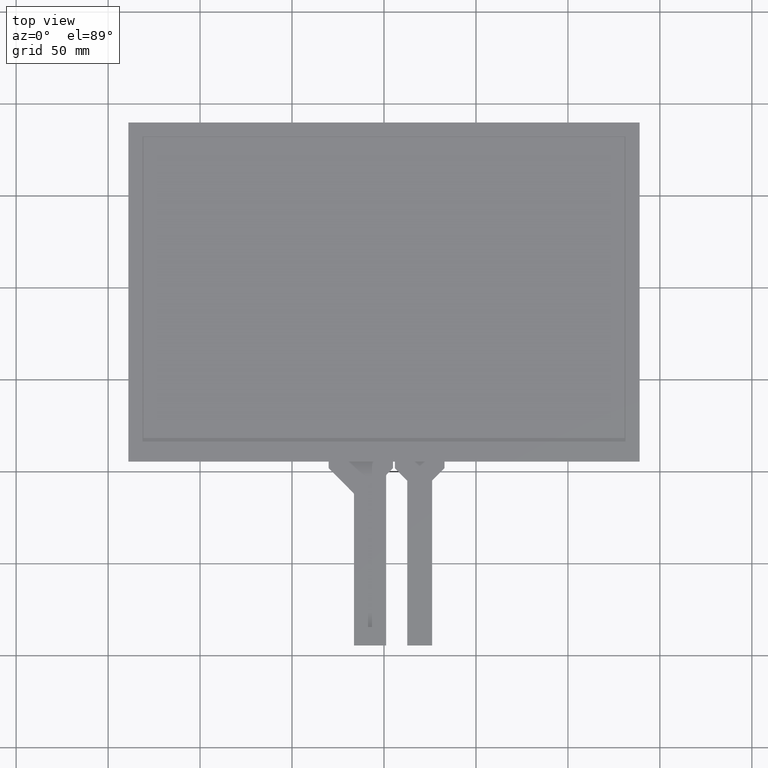
[diagram: clean part render]
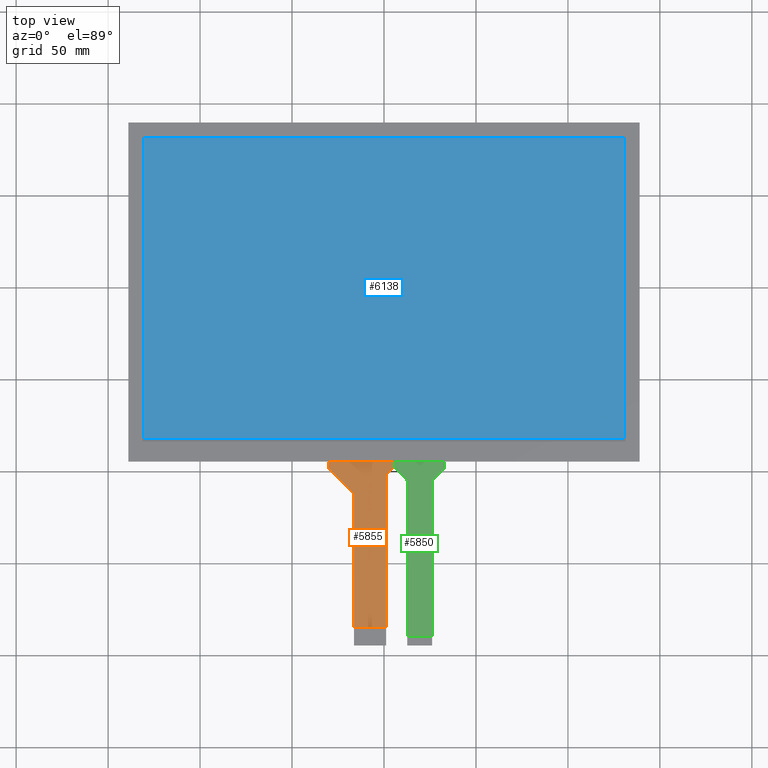
[diagram: same view with three faces highlighted in distinct colors, each labeled with its STEP entity id]
A machine part, top view with three faces highlighted in distinct colors.
Their STEP definitions:

[orange] entity #5855 — the highlighted planar face has unit normal (0, 0, 1).
#93=PLANE('',#6179);
#379=FACE_OUTER_BOUND('',#673,.T.);
#673=EDGE_LOOP('',(#4158,#4159,#4160,#4161,#4162,#4163,#4164,#4165,#4166,
#4167,#4168,#4169));
#983=LINE('',#8019,#1823);
#993=LINE('',#8042,#1833);
#994=LINE('',#8045,#1834);
#995=LINE('',#8047,#1835);
#996=LINE('',#8049,#1836);
#997=LINE('',#8053,#1837);
#998=LINE('',#8057,#1838);
#999=LINE('',#8058,#1839);
#1823=VECTOR('',#6531,10.);
#1833=VECTOR('',#6549,10.);
#1834=VECTOR('',#6552,10.);
#1835=VECTOR('',#6553,10.);
#1836=VECTOR('',#6554,10.);
#1837=VECTOR('',#6557,10.);
#1838=VECTOR('',#6560,10.);
#1839=VECTOR('',#6561,10.);
#2648=CIRCLE('',#6172,1.);
#2651=CIRCLE('',#6177,1.);
#2652=CIRCLE('',#6180,1.);
#2653=CIRCLE('',#6181,1.);
#2687=VERTEX_POINT('',#8009);
#2688=VERTEX_POINT('',#8010);
#2691=VERTEX_POINT('',#8018);
#2699=VERTEX_POINT('',#8035);
#2700=VERTEX_POINT('',#8037);
#2701=VERTEX_POINT('',#8044);
#2702=VERTEX_POINT('',#8046);
#2703=VERTEX_POINT('',#8048);
#2704=VERTEX_POINT('',#8050);
#2705=VERTEX_POINT('',#8052);
#2706=VERTEX_POINT('',#8054);
#2707=VERTEX_POINT('',#8056);
#3267=EDGE_CURVE('',#2687,#2688,#2648,.T.);
#3271=EDGE_CURVE('',#2691,#2688,#983,.T.);
#3280=EDGE_CURVE('',#2699,#2700,#2651,.T.);
#3283=EDGE_CURVE('',#2687,#2700,#993,.T.);
#3284=EDGE_CURVE('',#2699,#2701,#994,.T.);
#3285=EDGE_CURVE('',#2702,#2701,#995,.T.);
#3286=EDGE_CURVE('',#2702,#2703,#996,.T.);
#3287=EDGE_CURVE('',#2704,#2703,#2652,.T.);
#3288=EDGE_CURVE('',#2704,#2705,#997,.T.);
#3289=EDGE_CURVE('',#2706,#2705,#2653,.T.);
#3290=EDGE_CURVE('',#2706,#2707,#998,.T.);
#3291=EDGE_CURVE('',#2707,#2691,#999,.T.);
#4158=ORIENTED_EDGE('',*,*,#3280,.F.);
#4159=ORIENTED_EDGE('',*,*,#3284,.T.);
#4160=ORIENTED_EDGE('',*,*,#3285,.F.);
#4161=ORIENTED_EDGE('',*,*,#3286,.T.);
#4162=ORIENTED_EDGE('',*,*,#3287,.F.);
#4163=ORIENTED_EDGE('',*,*,#3288,.T.);
#4164=ORIENTED_EDGE('',*,*,#3289,.F.);
#4165=ORIENTED_EDGE('',*,*,#3290,.T.);
#4166=ORIENTED_EDGE('',*,*,#3291,.T.);
#4167=ORIENTED_EDGE('',*,*,#3271,.T.);
#4168=ORIENTED_EDGE('',*,*,#3267,.F.);
#4169=ORIENTED_EDGE('',*,*,#3283,.T.);
#5855=ADVANCED_FACE('',(#379),#93,.T.);
#6172=AXIS2_PLACEMENT_3D('',#8011,#6523,#6524);
#6177=AXIS2_PLACEMENT_3D('',#8038,#6543,#6544);
#6179=AXIS2_PLACEMENT_3D('',#8043,#6550,#6551);
#6180=AXIS2_PLACEMENT_3D('',#8051,#6555,#6556);
#6181=AXIS2_PLACEMENT_3D('',#8055,#6558,#6559);
#6523=DIRECTION('center_axis',(0.,0.,1.));
#6524=DIRECTION('ref_axis',(-0.923531889914345,0.383521639951696,0.));
#6531=DIRECTION('',(-4.79248887762602E-16,1.,0.));
#6543=DIRECTION('center_axis',(0.,0.,-1.));
#6544=DIRECTION('ref_axis',(0.923531889914352,-0.383521639951679,0.));
#6549=DIRECTION('',(0.708388929935268,0.705822303377533,0.));
#6550=DIRECTION('center_axis',(0.,0.,1.));
#6551=DIRECTION('ref_axis',(1.,0.,0.));
#6552=DIRECTION('',(-3.083952846181E-16,1.,0.));
#6553=DIRECTION('',(1.,1.27832242328746E-16,0.));
#6554=DIRECTION('',(-1.2335811384724E-15,-1.,0.));
#6555=DIRECTION('center_axis',(0.,0.,-1.));
#6556=DIRECTION('ref_axis',(-0.924226414342084,-0.381844909658848,0.));
#6557=DIRECTION('',(0.705822303377533,-0.708388929935268,0.));
#6558=DIRECTION('center_axis',(0.,0.,1.));
#6559=DIRECTION('ref_axis',(0.924226414342084,0.38184490965885,0.));
#6560=DIRECTION('',(1.07527653716722E-16,-1.,0.));
#6561=DIRECTION('',(1.,-2.03012210217171E-15,0.));
#8009=CARTESIAN_POINT('',(1.45417769662247,-101.593301208075,-0.2));
#8010=CARTESIAN_POINT('',(1.16000000000001,-102.301690138011,-0.2));
#8011=CARTESIAN_POINT('Origin',(2.16000000000001,-102.301690138011,-0.2));
#8018=CARTESIAN_POINT('',(1.16000000000005,-184.55,-0.2));
#8019=CARTESIAN_POINT('',(1.16000000000005,-194.55,-0.2));
#8035=CARTESIAN_POINT('',(4.91,-97.7347229054675,-0.2));
#8037=CARTESIAN_POINT('',(4.61582230337754,-98.4431118354028,-0.2));
#8038=CARTESIAN_POINT('Origin',(3.91,-97.7347229054675,-0.2));
#8042=CARTESIAN_POINT('',(1.16000000000001,-101.886413043478,-0.2));
#8043=CARTESIAN_POINT('Origin',(-12.59,-144.55,-0.2));
#8044=CARTESIAN_POINT('',(4.91,-94.55,-0.2));
#8045=CARTESIAN_POINT('',(4.91,-98.15,-0.2));
#8046=CARTESIAN_POINT('',(-30.09,-94.55,-0.2));
#8047=CARTESIAN_POINT('',(63.185,-94.55,-0.2));
#8048=CARTESIAN_POINT('',(-30.09,-97.7368491705783,-0.2));
#8049=CARTESIAN_POINT('',(-30.09,-94.55,-0.2));
#8050=CARTESIAN_POINT('',(-29.7983889299353,-98.4426714739558,-0.2));
#8051=CARTESIAN_POINT('Origin',(-29.09,-97.7368491705783,-0.2));
#8052=CARTESIAN_POINT('',(-16.6316110700647,-111.657328526044,-0.2));
#8053=CARTESIAN_POINT('',(-30.09,-98.15,-0.2));
#8054=CARTESIAN_POINT('',(-16.34,-112.363150829422,-0.2));
#8055=CARTESIAN_POINT('Origin',(-17.34,-112.363150829422,-0.2));
#8056=CARTESIAN_POINT('',(-16.34,-184.55,-0.2));
#8057=CARTESIAN_POINT('',(-16.34,-111.95,-0.2));
#8058=CARTESIAN_POINT('',(-5.71500000000002,-184.55,-0.2));

[blue] entity #6138 — the highlighted planar face has unit normal (0, 0, 1).
#368=PLANE('',#6476);
#662=FACE_OUTER_BOUND('',#960,.T.);
#960=EDGE_LOOP('',(#5826,#5827,#5828,#5829));
#1766=LINE('',#9618,#2606);
#1770=LINE('',#9626,#2610);
#1773=LINE('',#9632,#2613);
#1776=LINE('',#9637,#2616);
#2606=VECTOR('',#7890,10.);
#2610=VECTOR('',#7896,10.);
#2613=VECTOR('',#7901,10.);
#2616=VECTOR('',#7906,10.);
#3218=VERTEX_POINT('',#9616);
#3219=VERTEX_POINT('',#9617);
#3222=VERTEX_POINT('',#9625);
#3224=VERTEX_POINT('',#9631);
#4070=EDGE_CURVE('',#3218,#3219,#1766,.T.);
#4074=EDGE_CURVE('',#3222,#3218,#1770,.T.);
#4077=EDGE_CURVE('',#3224,#3222,#1773,.T.);
#4080=EDGE_CURVE('',#3219,#3224,#1776,.T.);
#5826=ORIENTED_EDGE('',*,*,#4070,.T.);
#5827=ORIENTED_EDGE('',*,*,#4080,.T.);
#5828=ORIENTED_EDGE('',*,*,#4077,.T.);
#5829=ORIENTED_EDGE('',*,*,#4074,.T.);
#6138=ADVANCED_FACE('',(#662),#368,.T.);
#6476=AXIS2_PLACEMENT_3D('',#9689,#7952,#7953);
#7890=DIRECTION('',(1.,0.,0.));
#7896=DIRECTION('',(0.,-1.,0.));
#7901=DIRECTION('',(-1.,0.,0.));
#7906=DIRECTION('',(0.,1.,0.));
#7952=DIRECTION('center_axis',(0.,0.,1.));
#7953=DIRECTION('ref_axis',(1.,0.,0.));
#9616=CARTESIAN_POINT('',(-130.81,-81.85,0.));
#9617=CARTESIAN_POINT('',(130.81,-81.85,0.));
#9618=CARTESIAN_POINT('',(-65.405,-81.85,0.));
#9625=CARTESIAN_POINT('',(-130.81,81.85,0.));
#9626=CARTESIAN_POINT('',(-130.81,39.75,0.));
#9631=CARTESIAN_POINT('',(130.81,81.85,0.));
#9632=CARTESIAN_POINT('',(65.405,81.85,0.));
#9637=CARTESIAN_POINT('',(130.81,-42.1,0.));
#9689=CARTESIAN_POINT('Origin',(0.,-2.34999999999998,0.));

[green] entity #5850 — the highlighted planar face has unit normal (0, 0, 1).
#90=PLANE('',#6168);
#374=FACE_OUTER_BOUND('',#668,.T.);
#668=EDGE_LOOP('',(#4126,#4127,#4128,#4129,#4130,#4131,#4132,#4133,#4134,
#4135,#4136,#4137));
#964=LINE('',#7968,#1804);
#974=LINE('',#7991,#1814);
#975=LINE('',#7994,#1815);
#976=LINE('',#7996,#1816);
#977=LINE('',#7998,#1817);
#978=LINE('',#8002,#1818);
#979=LINE('',#8006,#1819);
#980=LINE('',#8007,#1820);
#1804=VECTOR('',#6490,10.);
#1814=VECTOR('',#6508,10.);
#1815=VECTOR('',#6511,10.);
#1816=VECTOR('',#6512,10.);
#1817=VECTOR('',#6513,10.);
#1818=VECTOR('',#6516,10.);
#1819=VECTOR('',#6519,10.);
#1820=VECTOR('',#6520,10.);
#2642=CIRCLE('',#6161,1.);
#2645=CIRCLE('',#6166,1.);
#2646=CIRCLE('',#6169,1.);
#2647=CIRCLE('',#6170,1.);
#2666=VERTEX_POINT('',#7958);
#2667=VERTEX_POINT('',#7959);
#2670=VERTEX_POINT('',#7967);
#2678=VERTEX_POINT('',#7984);
#2679=VERTEX_POINT('',#7986);
#2680=VERTEX_POINT('',#7993);
#2681=VERTEX_POINT('',#7995);
#2682=VERTEX_POINT('',#7997);
#2683=VERTEX_POINT('',#7999);
#2684=VERTEX_POINT('',#8001);
#2685=VERTEX_POINT('',#8003);
#2686=VERTEX_POINT('',#8005);
#3242=EDGE_CURVE('',#2666,#2667,#2642,.T.);
#3246=EDGE_CURVE('',#2670,#2667,#964,.T.);
#3255=EDGE_CURVE('',#2678,#2679,#2645,.T.);
#3258=EDGE_CURVE('',#2666,#2679,#974,.T.);
#3259=EDGE_CURVE('',#2678,#2680,#975,.T.);
#3260=EDGE_CURVE('',#2681,#2680,#976,.T.);
#3261=EDGE_CURVE('',#2681,#2682,#977,.T.);
#3262=EDGE_CURVE('',#2683,#2682,#2646,.T.);
#3263=EDGE_CURVE('',#2683,#2684,#978,.T.);
#3264=EDGE_CURVE('',#2685,#2684,#2647,.T.);
#3265=EDGE_CURVE('',#2685,#2686,#979,.T.);
#3266=EDGE_CURVE('',#2686,#2670,#980,.T.);
#4126=ORIENTED_EDGE('',*,*,#3255,.F.);
#4127=ORIENTED_EDGE('',*,*,#3259,.T.);
#4128=ORIENTED_EDGE('',*,*,#3260,.F.);
#4129=ORIENTED_EDGE('',*,*,#3261,.T.);
#4130=ORIENTED_EDGE('',*,*,#3262,.F.);
#4131=ORIENTED_EDGE('',*,*,#3263,.T.);
#4132=ORIENTED_EDGE('',*,*,#3264,.F.);
#4133=ORIENTED_EDGE('',*,*,#3265,.T.);
#4134=ORIENTED_EDGE('',*,*,#3266,.T.);
#4135=ORIENTED_EDGE('',*,*,#3246,.T.);
#4136=ORIENTED_EDGE('',*,*,#3242,.F.);
#4137=ORIENTED_EDGE('',*,*,#3258,.T.);
#5850=ADVANCED_FACE('',(#374),#90,.T.);
#6161=AXIS2_PLACEMENT_3D('',#7960,#6482,#6483);
#6166=AXIS2_PLACEMENT_3D('',#7987,#6502,#6503);
#6168=AXIS2_PLACEMENT_3D('',#7992,#6509,#6510);
#6169=AXIS2_PLACEMENT_3D('',#8000,#6514,#6515);
#6170=AXIS2_PLACEMENT_3D('',#8004,#6517,#6518);
#6482=DIRECTION('center_axis',(0.,0.,1.));
#6483=DIRECTION('ref_axis',(-0.923166632761976,0.384400010607329,0.));
#6490=DIRECTION('',(-3.96066184927592E-16,1.,0.));
#6502=DIRECTION('center_axis',(0.,0.,-1.));
#6503=DIRECTION('ref_axis',(0.923166632761976,-0.384400010607329,0.));
#6508=DIRECTION('',(0.709730526852056,0.704473263690187,0.));
#6509=DIRECTION('center_axis',(0.,0.,1.));
#6510=DIRECTION('ref_axis',(1.,0.,0.));
#6511=DIRECTION('',(1.23358113847239E-15,1.,0.));
#6512=DIRECTION('',(1.,1.27832242328746E-16,0.));
#6513=DIRECTION('',(3.08395284618098E-16,-1.,0.));
#6514=DIRECTION('center_axis',(0.,0.,-1.));
#6515=DIRECTION('ref_axis',(-0.92458924037976,-0.38096553200254,0.));
#6516=DIRECTION('',(0.704473263690187,-0.709730526852056,0.));
#6517=DIRECTION('center_axis',(0.,0.,1.));
#6518=DIRECTION('ref_axis',(0.924589240379767,0.380965532002523,0.));
#6519=DIRECTION('',(1.48691202871585E-16,-1.,0.));
#6520=DIRECTION('',(1.,0.,0.));
#7958=CARTESIAN_POINT('',(26.4555267363098,-104.556662350626,-0.2));
#7959=CARTESIAN_POINT('',(26.16,-105.266392877478,-0.2));
#7960=CARTESIAN_POINT('Origin',(27.16,-105.266392877478,-0.2));
#7967=CARTESIAN_POINT('',(26.1600000000001,-189.55,-0.2));
#7968=CARTESIAN_POINT('',(26.1600000000001,-194.55,-0.2));
#7984=CARTESIAN_POINT('',(32.91,-97.7336071225221,-0.2));
#7986=CARTESIAN_POINT('',(32.6144732636902,-98.4433376493742,-0.2));
#7987=CARTESIAN_POINT('Origin',(31.91,-97.7336071225221,-0.2));
#7991=CARTESIAN_POINT('',(26.16,-104.85,-0.2));
#7992=CARTESIAN_POINT('Origin',(19.41,-144.55,-0.2));
#7993=CARTESIAN_POINT('',(32.91,-94.55,-0.2));
#7994=CARTESIAN_POINT('',(32.91,-98.15,-0.2));
#7995=CARTESIAN_POINT('',(5.91000000000003,-94.55,-0.2));
#7996=CARTESIAN_POINT('',(79.185,-94.55,-0.2));
#7997=CARTESIAN_POINT('',(5.91000000000003,-97.7379623995559,-0.2));
#7998=CARTESIAN_POINT('',(5.91000000000003,-94.55,-0.2));
#7999=CARTESIAN_POINT('',(6.20026947314797,-98.4424356632461,-0.2));
#8000=CARTESIAN_POINT('Origin',(6.91000000000003,-97.7379623995559,-0.2));
#8001=CARTESIAN_POINT('',(12.3697305268521,-104.657937471082,-0.2));
#8002=CARTESIAN_POINT('',(5.91000000000003,-98.15,-0.2));
#8003=CARTESIAN_POINT('',(12.66,-105.362410734773,-0.2));
#8004=CARTESIAN_POINT('Origin',(11.66,-105.362410734773,-0.2));
#8005=CARTESIAN_POINT('',(12.6600000000001,-189.55,-0.2));
#8006=CARTESIAN_POINT('',(12.66,-104.950373134328,-0.2));
#8007=CARTESIAN_POINT('',(16.035,-189.55,-0.2));